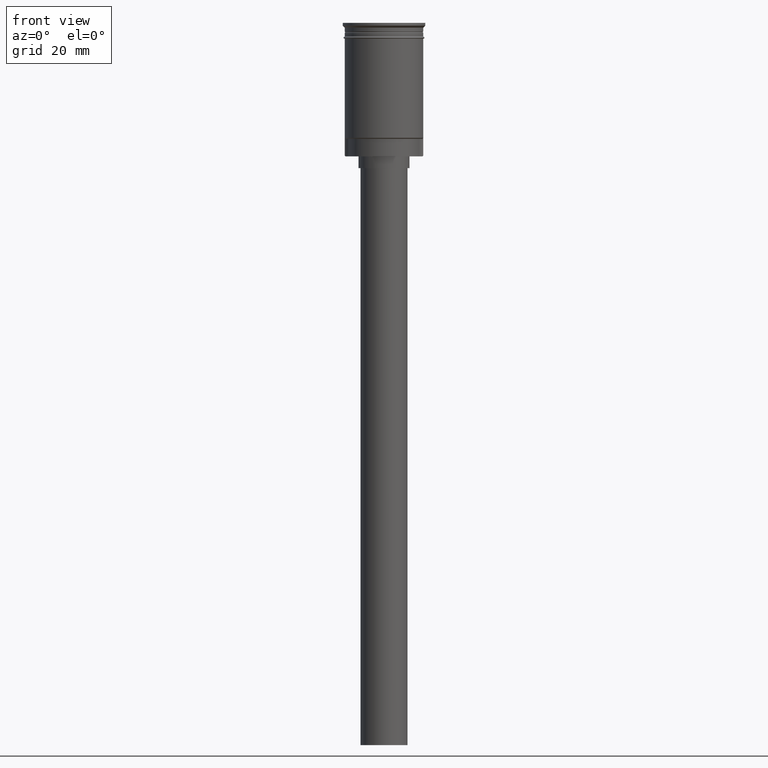
[diagram: clean part render]
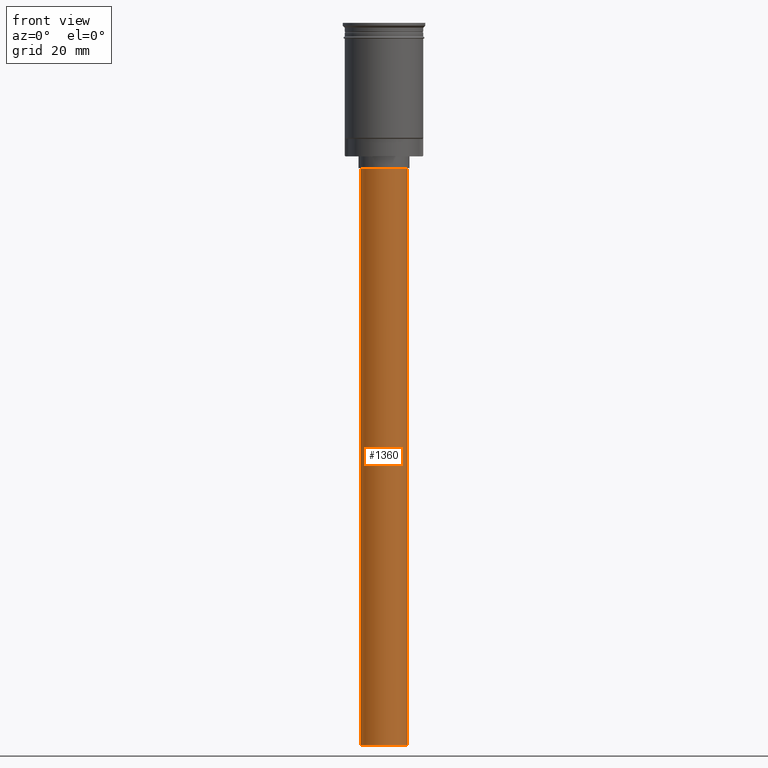
[diagram: same view with one face highlighted and labeled with its STEP entity id]
A machine part, front view. The second image highlights one B-rep face of the part: STEP entity #1360.
In plain terms, the highlighted cylindrical surface (edge-blend (fillet) strip) has radius 6 mm, axis along (-0, -0, 1).
Its self-contained STEP definition (entity closure, byte-faithful):
#69 = VERTEX_POINT ( 'NONE', #371 ) ;
#98 = EDGE_CURVE ( 'NONE', #388, #1123, #895, .T. ) ;
#107 = FACE_OUTER_BOUND ( 'NONE', #1583, .T. ) ;
#211 = CARTESIAN_POINT ( 'NONE',  ( 0.000000000000000000, 0.000000000000000000, -37.00000000000000000 ) ) ;
#244 = ORIENTED_EDGE ( 'NONE', *, *, #1044, .F. ) ;
#276 = AXIS2_PLACEMENT_3D ( 'NONE', #211, #757, #704 ) ;
#279 = CARTESIAN_POINT ( 'NONE',  ( -6.000000000000000888, 7.347880794884120722E-16, -184.0000000000000000 ) ) ;
#296 = CARTESIAN_POINT ( 'NONE',  ( -6.000000000000000888, 7.347880794884120722E-16, -37.00000000000000000 ) ) ;
#298 = DIRECTION ( 'NONE',  ( 0.000000000000000000, 0.000000000000000000, -1.000000000000000000 ) ) ;
#304 = ORIENTED_EDGE ( 'NONE', *, *, #719, .F. ) ;
#333 = AXIS2_PLACEMENT_3D ( 'NONE', #671, #298, #1265 ) ;
#371 = CARTESIAN_POINT ( 'NONE',  ( 6.000000000000000888, 0.000000000000000000, -184.0000000000000000 ) ) ;
#388 = VERTEX_POINT ( 'NONE', #584 ) ;
#416 = ORIENTED_EDGE ( 'NONE', *, *, #98, .T. ) ;
#468 = CYLINDRICAL_SURFACE ( 'NONE', #1371, 6.000000000000000888 ) ;
#511 = EDGE_CURVE ( 'NONE', #69, #388, #1124, .T. ) ;
#549 = LINE ( 'NONE', #644, #592 ) ;
#568 = ORIENTED_EDGE ( 'NONE', *, *, #511, .T. ) ;
#584 = CARTESIAN_POINT ( 'NONE',  ( 6.000000000000000888, 0.000000000000000000, -37.00000000000000000 ) ) ;
#592 = VECTOR ( 'NONE', #1141, 1000.000000000000000 ) ;
#603 = DIRECTION ( 'NONE',  ( -0.000000000000000000, -0.000000000000000000, 1.000000000000000000 ) ) ;
#644 = CARTESIAN_POINT ( 'NONE',  ( -6.000000000000000888, 7.347880794884120722E-16, -184.0000000000000000 ) ) ;
#671 = CARTESIAN_POINT ( 'NONE',  ( 0.000000000000000000, 0.000000000000000000, -184.0000000000000000 ) ) ;
#704 = DIRECTION ( 'NONE',  ( -1.000000000000000000, 0.000000000000000000, 0.000000000000000000 ) ) ;
#719 = EDGE_CURVE ( 'NONE', #69, #1131, #1106, .T. ) ;
#757 = DIRECTION ( 'NONE',  ( 0.000000000000000000, 0.000000000000000000, -1.000000000000000000 ) ) ;
#867 = CARTESIAN_POINT ( 'NONE',  ( 6.000000000000000888, 0.000000000000000000, -184.0000000000000000 ) ) ;
#878 = DIRECTION ( 'NONE',  ( -0.000000000000000000, -0.000000000000000000, 1.000000000000000000 ) ) ;
#895 = CIRCLE ( 'NONE', #276, 6.000000000000000888 ) ;
#989 = DIRECTION ( 'NONE',  ( 1.000000000000000000, 0.000000000000000000, 0.000000000000000000 ) ) ;
#1044 = EDGE_CURVE ( 'NONE', #1131, #1123, #549, .T. ) ;
#1080 = VECTOR ( 'NONE', #878, 1000.000000000000000 ) ;
#1100 = CARTESIAN_POINT ( 'NONE',  ( 0.000000000000000000, 0.000000000000000000, -184.0000000000000000 ) ) ;
#1106 = CIRCLE ( 'NONE', #333, 6.000000000000000888 ) ;
#1123 = VERTEX_POINT ( 'NONE', #296 ) ;
#1124 = LINE ( 'NONE', #867, #1080 ) ;
#1131 = VERTEX_POINT ( 'NONE', #279 ) ;
#1141 = DIRECTION ( 'NONE',  ( -0.000000000000000000, -0.000000000000000000, 1.000000000000000000 ) ) ;
#1265 = DIRECTION ( 'NONE',  ( -1.000000000000000000, 0.000000000000000000, 0.000000000000000000 ) ) ;
#1360 = ADVANCED_FACE ( 'NONE', ( #107 ), #468, .T. ) ;
#1371 = AXIS2_PLACEMENT_3D ( 'NONE', #1100, #603, #989 ) ;
#1583 = EDGE_LOOP ( 'NONE', ( #244, #304, #568, #416 ) ) ;